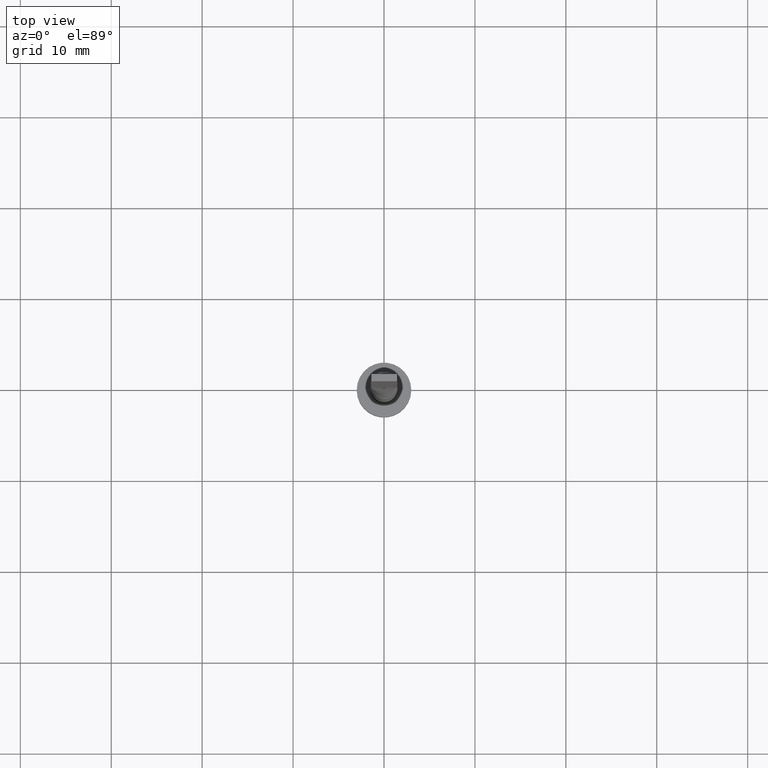
[diagram: clean part render]
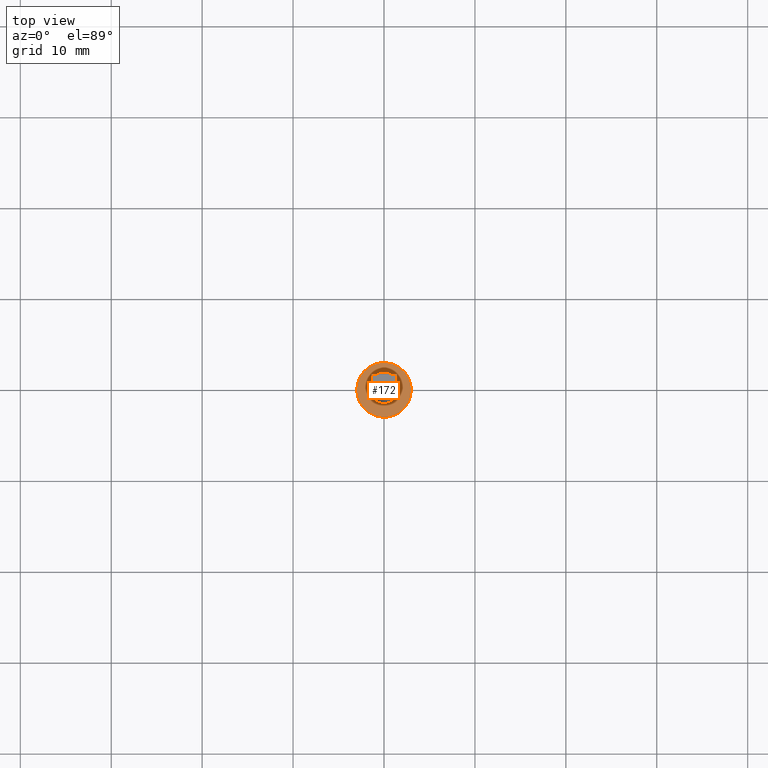
[diagram: same view with one face highlighted and labeled with its STEP entity id]
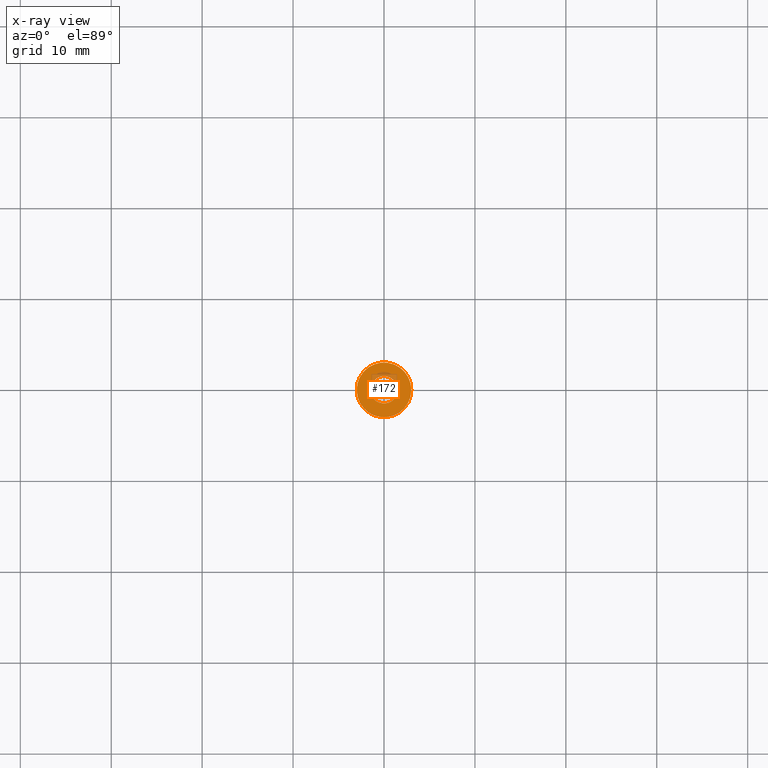
[diagram: x-ray of the same camera — body ghosted, the highlighted face saturated]
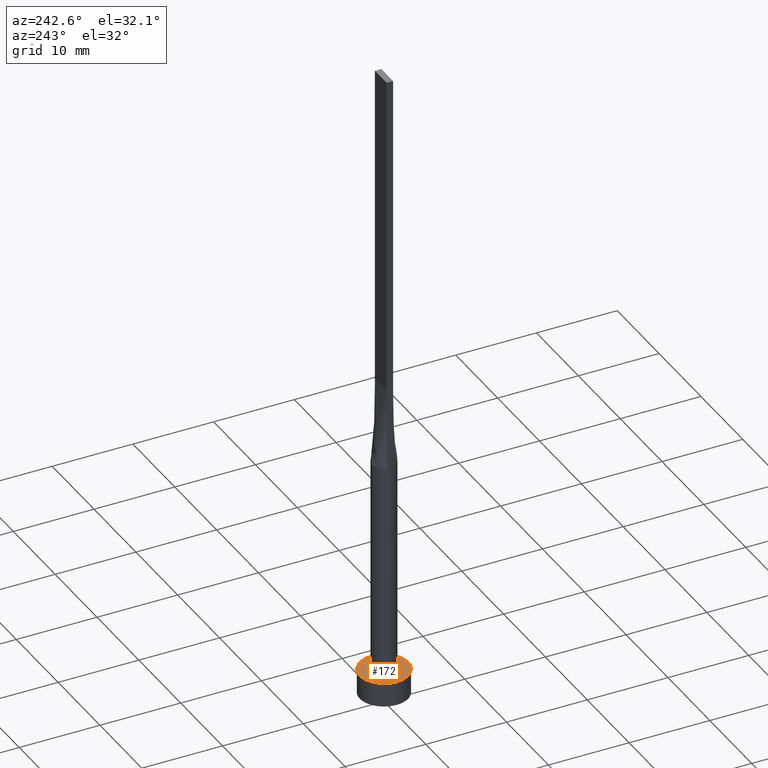
[diagram: same view with one face highlighted and labeled with its STEP entity id]
A machine part, top view. The second image highlights one B-rep face of the part: STEP entity #172.
The next image is the same camera in x-ray: the body ghosted, the highlighted face saturated — about 8% of this face is hidden behind the body in this view.
A second angle (auxiliary view) of the same face is appended — the face is thin or edge-on in the first view.
In plain terms, the highlighted planar face has unit normal (0, 0, 1).
Its self-contained STEP definition (entity closure, byte-faithful):
#12 = CARTESIAN_POINT ( 'NONE',  ( -1.500000000000000222, 0.000000000000000000, 3.000000000000000000 ) ) ;
#41 = EDGE_CURVE ( 'NONE', #47, #55, #264, .T. ) ;
#47 = VERTEX_POINT ( 'NONE', #569 ) ;
#53 = DIRECTION ( 'NONE',  ( 1.000000000000000000, 0.000000000000000000, 0.000000000000000000 ) ) ;
#55 = VERTEX_POINT ( 'NONE', #248 ) ;
#64 = EDGE_CURVE ( 'NONE', #331, #268, #68, .T. ) ;
#68 = CIRCLE ( 'NONE', #416, 1.500000000000000222 ) ;
#84 = AXIS2_PLACEMENT_3D ( 'NONE', #305, #348, #475 ) ;
#92 = EDGE_LOOP ( 'NONE', ( #355, #139 ) ) ;
#112 = CIRCLE ( 'NONE', #426, 3.000000000000000444 ) ;
#125 = EDGE_CURVE ( 'NONE', #55, #47, #112, .T. ) ;
#127 = AXIS2_PLACEMENT_3D ( 'NONE', #327, #315, #53 ) ;
#135 = DIRECTION ( 'NONE',  ( 1.000000000000000000, 0.000000000000000000, -0.000000000000000000 ) ) ;
#139 = ORIENTED_EDGE ( 'NONE', *, *, #64, .F. ) ;
#160 = CARTESIAN_POINT ( 'NONE',  ( 0.000000000000000000, 0.000000000000000000, 3.000000000000000000 ) ) ;
#172 = ADVANCED_FACE ( 'NONE', ( #223, #405 ), #282, .T. ) ;
#173 = ORIENTED_EDGE ( 'NONE', *, *, #125, .T. ) ;
#217 = EDGE_LOOP ( 'NONE', ( #320, #173 ) ) ;
#223 = FACE_BOUND ( 'NONE', #92, .T. ) ;
#225 = EDGE_CURVE ( 'NONE', #268, #331, #233, .T. ) ;
#233 = CIRCLE ( 'NONE', #127, 1.500000000000000222 ) ;
#248 = CARTESIAN_POINT ( 'NONE',  ( 3.000000000000000444, 3.673940397442060361E-16, 3.000000000000000000 ) ) ;
#264 = CIRCLE ( 'NONE', #84, 3.000000000000000444 ) ;
#268 = VERTEX_POINT ( 'NONE', #12 ) ;
#270 = CARTESIAN_POINT ( 'NONE',  ( 0.000000000000000000, 0.000000000000000000, 3.000000000000000000 ) ) ;
#282 = PLANE ( 'NONE',  #349 ) ;
#305 = CARTESIAN_POINT ( 'NONE',  ( 0.000000000000000000, 0.000000000000000000, 3.000000000000000000 ) ) ;
#315 = DIRECTION ( 'NONE',  ( 0.000000000000000000, 0.000000000000000000, 1.000000000000000000 ) ) ;
#320 = ORIENTED_EDGE ( 'NONE', *, *, #41, .T. ) ;
#327 = CARTESIAN_POINT ( 'NONE',  ( 0.000000000000000000, 0.000000000000000000, 3.000000000000000000 ) ) ;
#331 = VERTEX_POINT ( 'NONE', #409 ) ;
#340 = DIRECTION ( 'NONE',  ( 0.000000000000000000, 0.000000000000000000, 1.000000000000000000 ) ) ;
#348 = DIRECTION ( 'NONE',  ( 0.000000000000000000, 0.000000000000000000, 1.000000000000000000 ) ) ;
#349 = AXIS2_PLACEMENT_3D ( 'NONE', #270, #462, #135 ) ;
#355 = ORIENTED_EDGE ( 'NONE', *, *, #225, .F. ) ;
#389 = DIRECTION ( 'NONE',  ( 1.000000000000000000, 0.000000000000000000, 0.000000000000000000 ) ) ;
#405 = FACE_OUTER_BOUND ( 'NONE', #217, .T. ) ;
#409 = CARTESIAN_POINT ( 'NONE',  ( 1.500000000000000222, 1.836970198721030181E-16, 3.000000000000000000 ) ) ;
#416 = AXIS2_PLACEMENT_3D ( 'NONE', #441, #484, #438 ) ;
#426 = AXIS2_PLACEMENT_3D ( 'NONE', #160, #340, #389 ) ;
#438 = DIRECTION ( 'NONE',  ( 1.000000000000000000, 0.000000000000000000, 0.000000000000000000 ) ) ;
#441 = CARTESIAN_POINT ( 'NONE',  ( 0.000000000000000000, 0.000000000000000000, 3.000000000000000000 ) ) ;
#462 = DIRECTION ( 'NONE',  ( 0.000000000000000000, 0.000000000000000000, 1.000000000000000000 ) ) ;
#475 = DIRECTION ( 'NONE',  ( 1.000000000000000000, 0.000000000000000000, 0.000000000000000000 ) ) ;
#484 = DIRECTION ( 'NONE',  ( 0.000000000000000000, 0.000000000000000000, 1.000000000000000000 ) ) ;
#569 = CARTESIAN_POINT ( 'NONE',  ( -3.000000000000000444, 0.000000000000000000, 3.000000000000000000 ) ) ;